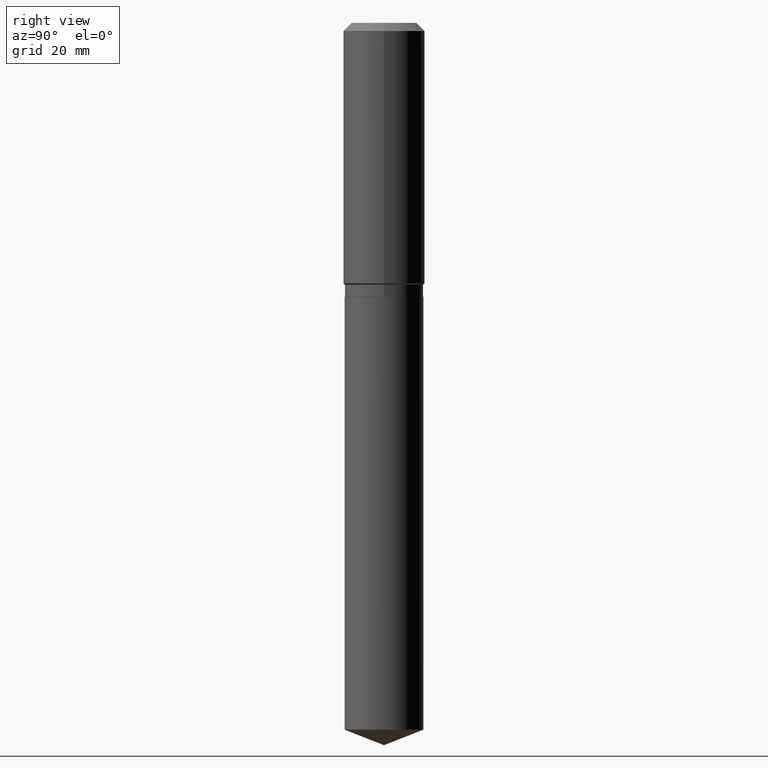
[diagram: clean part render]
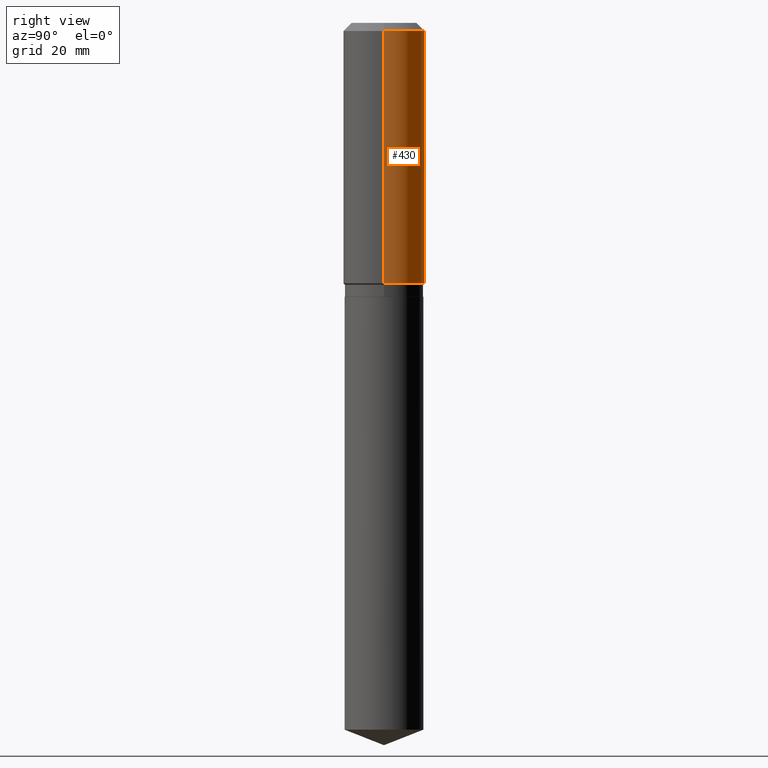
[diagram: same view with one face highlighted and labeled with its STEP entity id]
A machine part, right view. The second image highlights one B-rep face of the part: STEP entity #430.
In plain terms, the highlighted cylindrical surface (partial cylindrical patch) has radius 7.0002 mm, axis along (-0, 0, 1).
Its self-contained STEP definition (entity closure, byte-faithful):
#7 = ORIENTED_EDGE ( 'NONE', *, *, #309, .T. ) ;
#8 = AXIS2_PLACEMENT_3D ( 'NONE', #371, #180, #23 ) ;
#17 = FACE_OUTER_BOUND ( 'NONE', #382, .T. ) ;
#23 = DIRECTION ( 'NONE',  ( 1.000000000000000000, -6.982962677686265922E-15, 0.000000000000000000 ) ) ;
#28 = CARTESIAN_POINT ( 'NONE',  ( 0.000000000000000000, 0.000000000000000000, 0.000000000000000000 ) ) ;
#36 = VERTEX_POINT ( 'NONE', #233 ) ;
#61 = LINE ( 'NONE', #97, #346 ) ;
#86 = ORIENTED_EDGE ( 'NONE', *, *, #178, .F. ) ;
#97 = CARTESIAN_POINT ( 'NONE',  ( 0.2756000000000001227, -1.924504513970336137E-15, 1.343874319409360548E-29 ) ) ;
#117 = ORIENTED_EDGE ( 'NONE', *, *, #305, .T. ) ;
#128 = CIRCLE ( 'NONE', #8, 0.2756000000000000116 ) ;
#135 = EDGE_CURVE ( 'NONE', #349, #36, #128, .T. ) ;
#158 = AXIS2_PLACEMENT_3D ( 'NONE', #28, #363, #175 ) ;
#175 = DIRECTION ( 'NONE',  ( 1.000000000000000000, -6.982962677686267499E-15, 4.876176775795935793E-29 ) ) ;
#178 = EDGE_CURVE ( 'NONE', #473, #349, #61, .T. ) ;
#180 = DIRECTION ( 'NONE',  ( -2.445468806185136597E-29, 3.491481338843145583E-15, 1.000000000000000000 ) ) ;
#183 = AXIS2_PLACEMENT_3D ( 'NONE', #374, #297, #191 ) ;
#187 = CARTESIAN_POINT ( 'NONE',  ( -0.2756000000000002337, -4.188322543211574745E-15, -1.760449999999999182 ) ) ;
#191 = DIRECTION ( 'NONE',  ( 1.000000000000000000, -6.982962677686267499E-15, 0.000000000000000000 ) ) ;
#198 = LINE ( 'NONE', #373, #270 ) ;
#223 = DIRECTION ( 'NONE',  ( -2.445468806185136877E-29, 3.491481338843145188E-15, 1.000000000000000000 ) ) ;
#224 = CYLINDRICAL_SURFACE ( 'NONE', #158, 0.2756000000000001227 ) ;
#233 = CARTESIAN_POINT ( 'NONE',  ( -0.2756000000000000116, -1.211258607426886733E-15, -0.05512000000000035621 ) ) ;
#270 = VECTOR ( 'NONE', #340, 39.37007874015748143 ) ;
#290 = CARTESIAN_POINT ( 'NONE',  ( 0.2756000000000002337, -8.071082836936750233E-15, -1.760449999999999182 ) ) ;
#297 = DIRECTION ( 'NONE',  ( -2.445468806185136597E-29, 3.491481338843145583E-15, 1.000000000000000000 ) ) ;
#305 = EDGE_CURVE ( 'NONE', #473, #310, #486, .T. ) ;
#309 = EDGE_CURVE ( 'NONE', #310, #36, #198, .T. ) ;
#310 = VERTEX_POINT ( 'NONE', #187 ) ;
#340 = DIRECTION ( 'NONE',  ( -2.445468806185136877E-29, 3.491481338843145188E-15, 1.000000000000000000 ) ) ;
#346 = VECTOR ( 'NONE', #223, 39.37007874015748143 ) ;
#349 = VERTEX_POINT ( 'NONE', #415 ) ;
#363 = DIRECTION ( 'NONE',  ( -2.445468806185136597E-29, 3.491481338843145583E-15, 1.000000000000000000 ) ) ;
#371 = CARTESIAN_POINT ( 'NONE',  ( 1.347942405969256063E-30, -1.924504513970354330E-16, -0.05512000000000035621 ) ) ;
#373 = CARTESIAN_POINT ( 'NONE',  ( -0.2756000000000001227, 1.958255779754836984E-15, -1.355658510874252567E-29 ) ) ;
#374 = CARTESIAN_POINT ( 'NONE',  ( 4.305125559848622317E-29, -6.146578322966412912E-15, -1.760449999999999182 ) ) ;
#382 = EDGE_LOOP ( 'NONE', ( #117, #7, #475, #86 ) ) ;
#415 = CARTESIAN_POINT ( 'NONE',  ( 0.2756000000000000116, -2.116954965367370658E-15, -0.05512000000000035621 ) ) ;
#430 = ADVANCED_FACE ( 'NONE', ( #17 ), #224, .T. ) ;
#473 = VERTEX_POINT ( 'NONE', #290 ) ;
#475 = ORIENTED_EDGE ( 'NONE', *, *, #135, .F. ) ;
#486 = CIRCLE ( 'NONE', #183, 0.2756000000000002337 ) ;